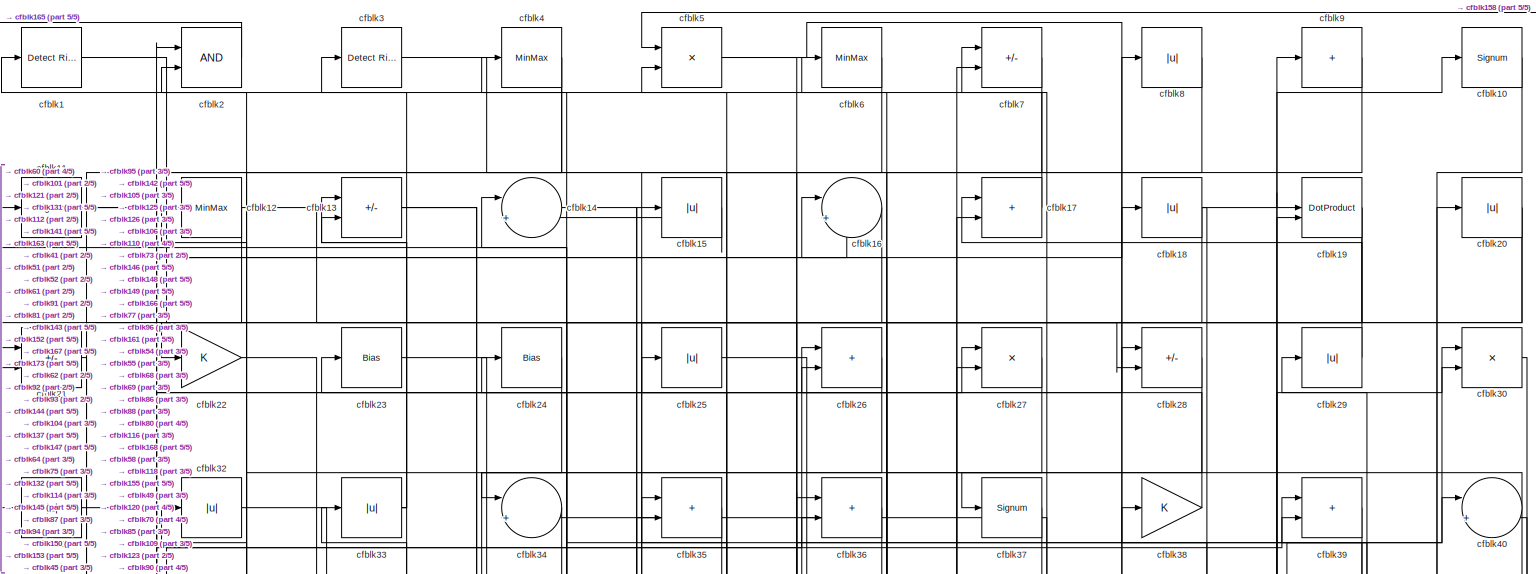
[diagram: root canvas - part 1/5, full width, top band]
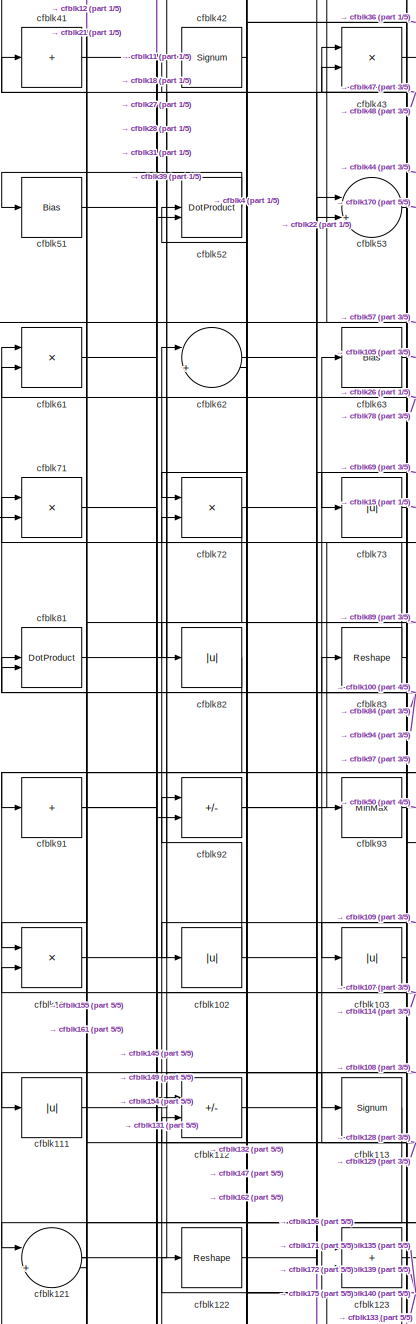
[diagram: root canvas - part 2/5, middle left region]
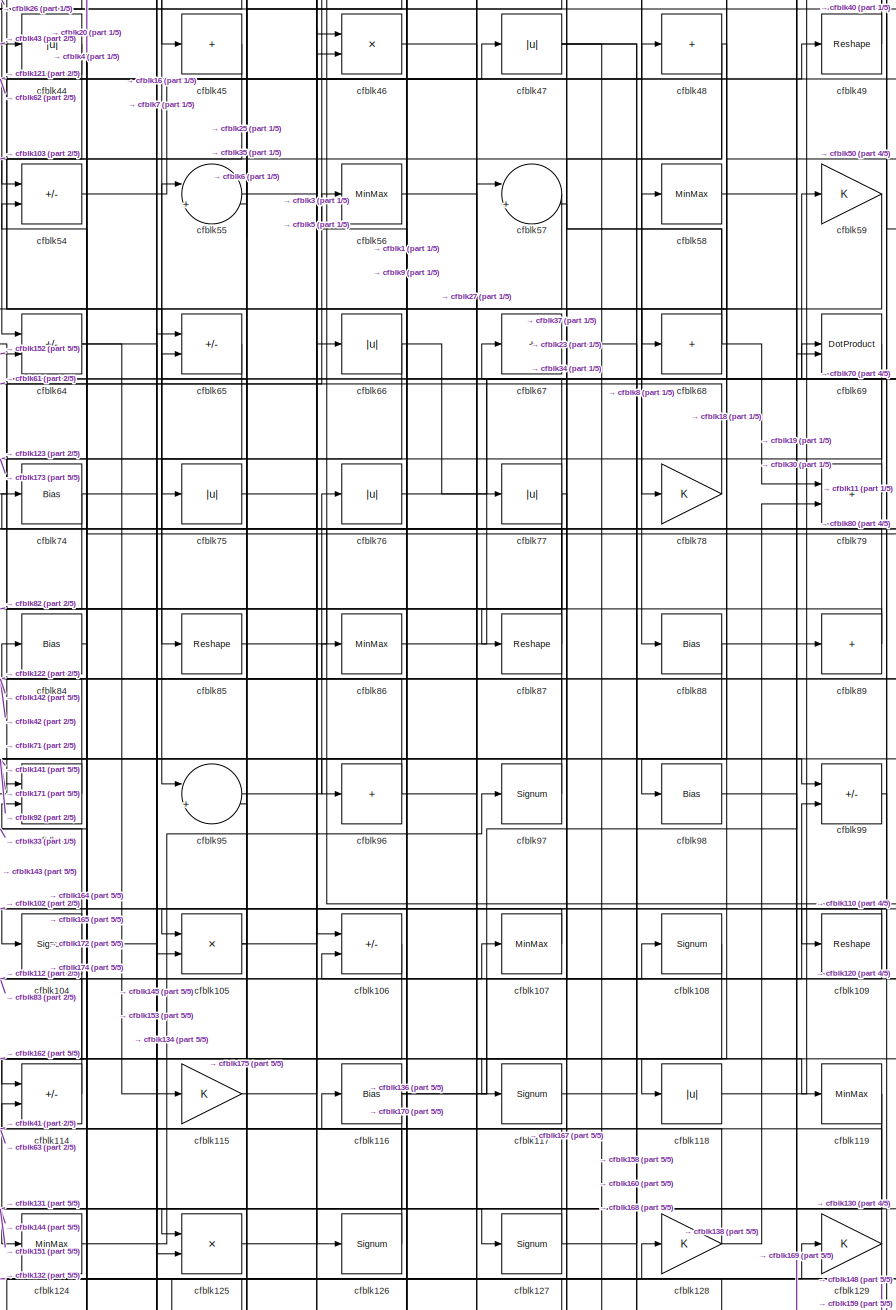
[diagram: root canvas - part 3/5, central region]
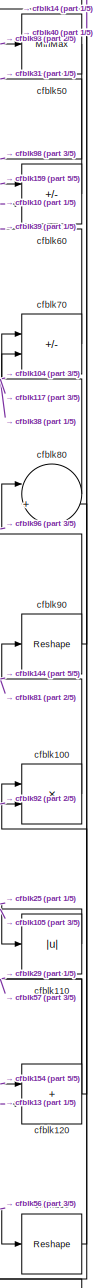
[diagram: root canvas - part 4/5, middle right region]
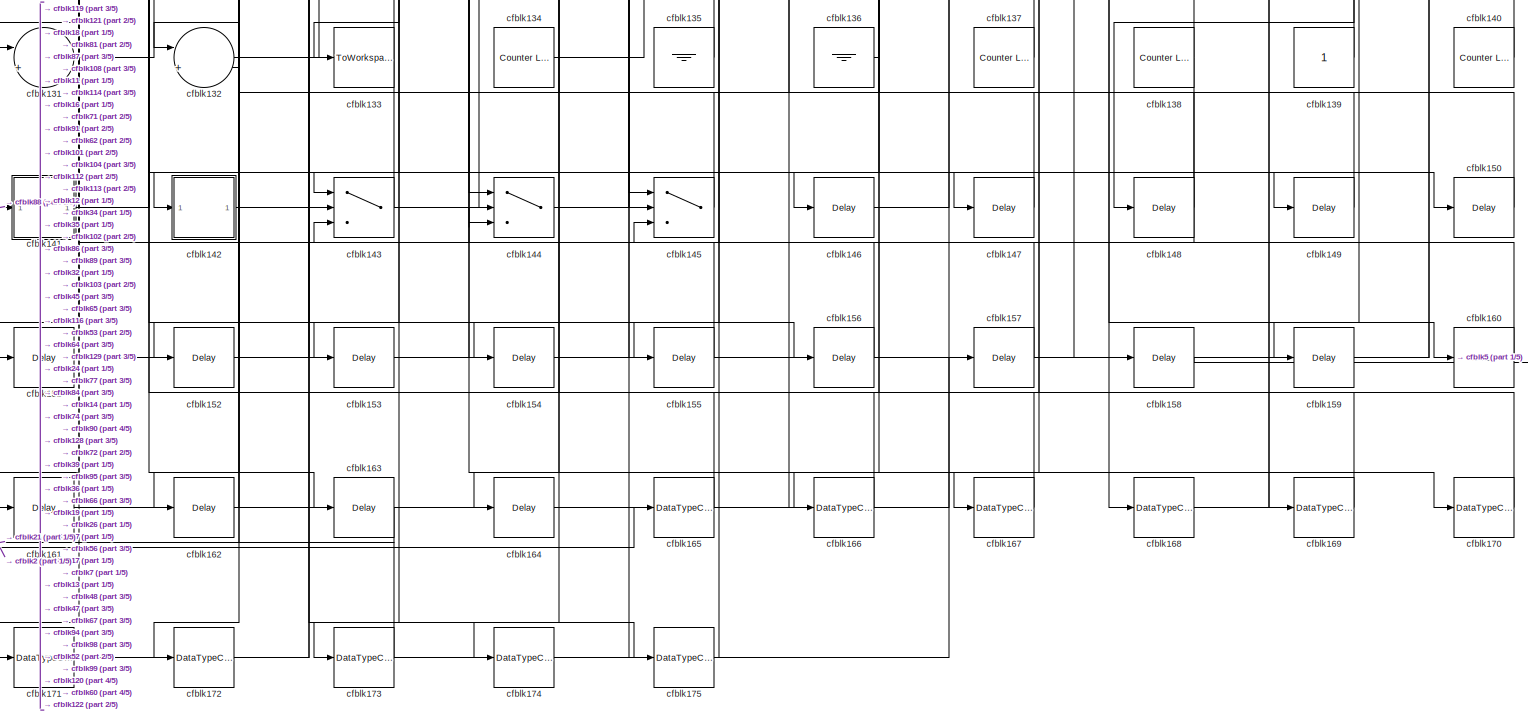
[diagram: root canvas - part 5/5, full width, bottom band]
MODEL slx_0c007ce50f65
KIND model
CONFIG AbsTol = auto
CONFIG EnableMultiTasking = off
CONFIG FixedStep = auto
CONFIG MaxStep = auto
CONFIG MinStep = auto
CONFIG RelTol = 1e-3
CONFIG SampleTimeConstraint = Unconstrained
CONFIG SolverName = VariableStepAuto
CONFIG StartTime = 0.0
CONFIG StopTime = 10.0
BLOCK [Reference] cfblk1  REF=hdlsllib/Logic and Bit
Operations/Detect Rise
Nonnegative
  SourceBlock = hdlsllib/Logic and Bit\nOperations/Detect Rise\nNonnegative
  SourceType = Detect Rise Nonnegative
BLOCK [Signum] cfblk10
BLOCK [Product] cfblk100
  Inputs = */
  RndMeth = Zero
  SaturateOnIntegerOverflow = on
BLOCK [Product] cfblk101
  Inputs = */
  RndMeth = Zero
  SaturateOnIntegerOverflow = on
BLOCK [Abs] cfblk102
  SaturateOnIntegerOverflow = off
BLOCK [Abs] cfblk103
  SaturateOnIntegerOverflow = off
BLOCK [Signum] cfblk104
BLOCK [Product] cfblk105
  Inputs = */
  RndMeth = Zero
  SaturateOnIntegerOverflow = on
BLOCK [Sum] cfblk106
  IconShape = rectangular
  Inputs = +-
BLOCK [MinMax] cfblk107
BLOCK [Signum] cfblk108
BLOCK [Reshape] cfblk109
BLOCK [Signum] cfblk11
BLOCK [Abs] cfblk110
  SaturateOnIntegerOverflow = off
BLOCK [Abs] cfblk111
  SaturateOnIntegerOverflow = off
BLOCK [Sum] cfblk112
  IconShape = rectangular
  Inputs = +-
BLOCK [Signum] cfblk113
BLOCK [Sum] cfblk114
  IconShape = rectangular
  Inputs = +-
BLOCK [Gain] cfblk115
BLOCK [Bias] cfblk116
  Bias = 0.0
  SaturateOnIntegerOverflow = off
BLOCK [Signum] cfblk117
BLOCK [Abs] cfblk118
  SaturateOnIntegerOverflow = off
BLOCK [MinMax] cfblk119
BLOCK [MinMax] cfblk12
BLOCK [Sum] cfblk120
  IconShape = rectangular
BLOCK [Sum] cfblk121
  Inputs = |++
BLOCK [Reshape] cfblk122
BLOCK [Sum] cfblk123
  IconShape = rectangular
BLOCK [MinMax] cfblk124
BLOCK [Product] cfblk125
  Inputs = */
  RndMeth = Zero
  SaturateOnIntegerOverflow = on
BLOCK [Signum] cfblk126
BLOCK [Signum] cfblk127
BLOCK [Gain] cfblk128
BLOCK [Gain] cfblk129
BLOCK [Sum] cfblk13
  IconShape = rectangular
  Inputs = +-
BLOCK [Reshape] cfblk130
BLOCK [Sum] cfblk131
  Inputs = |++
BLOCK [Sum] cfblk132
  Inputs = |++
BLOCK [ToWorkspace] cfblk133
  MaxDataPoints = inf
  SampleTime = -1
  SaveFormat = Timeseries
  VariableName = simout
BLOCK [Reference] cfblk134  REF=hdlsllib/Sources/Counter
Limited
  SourceBlock = hdlsllib/Sources/Counter\nLimited
  SourceType = Counter Limited
BLOCK [Ground] cfblk135
BLOCK [Ground] cfblk136
BLOCK [Reference] cfblk137  REF=hdlsllib/Sources/Counter
Limited
  SourceBlock = hdlsllib/Sources/Counter\nLimited
  SourceType = Counter Limited
BLOCK [Reference] cfblk138  REF=hdlsllib/Sources/Counter
Limited
  SourceBlock = hdlsllib/Sources/Counter\nLimited
  SourceType = Counter Limited
BLOCK [Constant] cfblk139
  SampleTime = -1
BLOCK [Sum] cfblk14
  Inputs = |++
BLOCK [Reference] cfblk140  REF=hdlsllib/Sources/Counter
Limited
  SourceBlock = hdlsllib/Sources/Counter\nLimited
  SourceType = Counter Limited
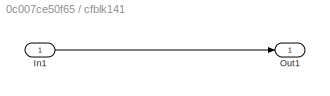
BLOCK [SubSystem] cfblk141
  LibrarySourceBlock = hdlsllib/Ports &\nSubsystems/Subsystem
BLOCK [Inport] cfblk141/In1
BLOCK [Outport] cfblk141/Out1
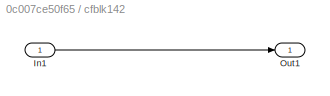
BLOCK [SubSystem] cfblk142
  LibrarySourceBlock = hdlsllib/Ports &\nSubsystems/Subsystem
BLOCK [Inport] cfblk142/In1
BLOCK [Outport] cfblk142/Out1
BLOCK [Switch] cfblk143
  InputSameDT = off
  SaturateOnIntegerOverflow = off
BLOCK [Switch] cfblk144
  InputSameDT = off
  SaturateOnIntegerOverflow = off
BLOCK [Switch] cfblk145
  InputSameDT = off
  SaturateOnIntegerOverflow = off
BLOCK [Delay] cfblk146
  InputPortMap = u0
  SampleTime = 1
BLOCK [Delay] cfblk147
  InputPortMap = u0
  SampleTime = 1
BLOCK [Delay] cfblk148
  InputPortMap = u0
  SampleTime = 1
BLOCK [Delay] cfblk149
  InputPortMap = u0
  SampleTime = 1
BLOCK [Abs] cfblk15
  SaturateOnIntegerOverflow = off
BLOCK [Delay] cfblk150
  InputPortMap = u0
  SampleTime = 1
BLOCK [Delay] cfblk151
  InputPortMap = u0
  SampleTime = 1
BLOCK [Delay] cfblk152
  InputPortMap = u0
  SampleTime = 1
BLOCK [Delay] cfblk153
  InputPortMap = u0
  SampleTime = 1
BLOCK [Delay] cfblk154
  InputPortMap = u0
  SampleTime = 1
BLOCK [Delay] cfblk155
  InputPortMap = u0
  SampleTime = 1
BLOCK [Delay] cfblk156
  InputPortMap = u0
  SampleTime = 1
BLOCK [Delay] cfblk157
  InputPortMap = u0
  SampleTime = 1
BLOCK [Delay] cfblk158
  InputPortMap = u0
  SampleTime = 1
BLOCK [Delay] cfblk159
  InputPortMap = u0
  SampleTime = 1
BLOCK [Sum] cfblk16
  Inputs = |++
BLOCK [Delay] cfblk160
  InputPortMap = u0
  SampleTime = 1
BLOCK [Delay] cfblk161
  InputPortMap = u0
  SampleTime = 1
BLOCK [Delay] cfblk162
  InputPortMap = u0
  SampleTime = 1
BLOCK [Delay] cfblk163
  InputPortMap = u0
  SampleTime = 1
BLOCK [Delay] cfblk164
  InputPortMap = u0
  SampleTime = 1
BLOCK [DataTypeConversion] cfblk165
  OutDataTypeStr = uint8
  RndMeth = Floor
  SaturateOnIntegerOverflow = off
BLOCK [DataTypeConversion] cfblk166
  OutDataTypeStr = uint8
  RndMeth = Floor
  SaturateOnIntegerOverflow = off
BLOCK [DataTypeConversion] cfblk167
  OutDataTypeStr = uint8
  RndMeth = Floor
  SaturateOnIntegerOverflow = off
BLOCK [DataTypeConversion] cfblk168
  OutDataTypeStr = uint8
  RndMeth = Floor
  SaturateOnIntegerOverflow = off
BLOCK [DataTypeConversion] cfblk169
  OutDataTypeStr = uint8
  RndMeth = Floor
  SaturateOnIntegerOverflow = off
BLOCK [Sum] cfblk17
  IconShape = rectangular
BLOCK [DataTypeConversion] cfblk170
  OutDataTypeStr = uint8
  RndMeth = Floor
  SaturateOnIntegerOverflow = off
BLOCK [DataTypeConversion] cfblk171
  OutDataTypeStr = uint8
  RndMeth = Floor
  SaturateOnIntegerOverflow = off
BLOCK [DataTypeConversion] cfblk172
  OutDataTypeStr = uint8
  RndMeth = Floor
  SaturateOnIntegerOverflow = off
BLOCK [DataTypeConversion] cfblk173
  RndMeth = Floor
  SaturateOnIntegerOverflow = off
BLOCK [DataTypeConversion] cfblk174
  OutDataTypeStr = uint8
  RndMeth = Floor
  SaturateOnIntegerOverflow = off
BLOCK [DataTypeConversion] cfblk175
  OutDataTypeStr = uint8
  RndMeth = Floor
  SaturateOnIntegerOverflow = off
BLOCK [Abs] cfblk18
  SaturateOnIntegerOverflow = off
BLOCK [DotProduct] cfblk19
  OutDataTypeStr = Inherit: Inherit via internal rule
BLOCK [Logic] cfblk2
  AllPortsSameDT = off
  OutDataTypeStr = boolean
BLOCK [Abs] cfblk20
  SaturateOnIntegerOverflow = off
BLOCK [Sum] cfblk21
  IconShape = rectangular
  Inputs = +-
BLOCK [Gain] cfblk22
BLOCK [Bias] cfblk23
  Bias = 0.0
  SaturateOnIntegerOverflow = off
BLOCK [Bias] cfblk24
  Bias = 0.0
  SaturateOnIntegerOverflow = off
BLOCK [Abs] cfblk25
  SaturateOnIntegerOverflow = off
BLOCK [Sum] cfblk26
  IconShape = rectangular
BLOCK [Product] cfblk27
  Inputs = */
  RndMeth = Zero
  SaturateOnIntegerOverflow = on
BLOCK [Sum] cfblk28
  IconShape = rectangular
  Inputs = +-
BLOCK [Abs] cfblk29
  SaturateOnIntegerOverflow = off
BLOCK [Reference] cfblk3  REF=hdlsllib/Logic and Bit
Operations/Detect Rise
Nonnegative
  SourceBlock = hdlsllib/Logic and Bit\nOperations/Detect Rise\nNonnegative
  SourceType = Detect Rise Nonnegative
BLOCK [Product] cfblk30
  Inputs = */
  RndMeth = Zero
  SaturateOnIntegerOverflow = on
BLOCK [Abs] cfblk31
  SaturateOnIntegerOverflow = off
BLOCK [Abs] cfblk32
  SaturateOnIntegerOverflow = off
BLOCK [Abs] cfblk33
  SaturateOnIntegerOverflow = off
BLOCK [Sum] cfblk34
  Inputs = |++
BLOCK [Sum] cfblk35
  IconShape = rectangular
BLOCK [Sum] cfblk36
  IconShape = rectangular
BLOCK [Signum] cfblk37
BLOCK [Gain] cfblk38
BLOCK [Sum] cfblk39
  IconShape = rectangular
BLOCK [MinMax] cfblk4
BLOCK [Sum] cfblk40
  Inputs = |++
BLOCK [Sum] cfblk41
  IconShape = rectangular
  Inputs = +
BLOCK [Signum] cfblk42
BLOCK [Product] cfblk43
  Inputs = */
  RndMeth = Zero
  SaturateOnIntegerOverflow = on
BLOCK [Abs] cfblk44
  SaturateOnIntegerOverflow = off
BLOCK [Sum] cfblk45
  IconShape = rectangular
  Inputs = +
BLOCK [Product] cfblk46
  Inputs = */
  RndMeth = Zero
  SaturateOnIntegerOverflow = on
BLOCK [Abs] cfblk47
  SaturateOnIntegerOverflow = off
BLOCK [Sum] cfblk48
  IconShape = rectangular
  Inputs = +
BLOCK [Reshape] cfblk49
BLOCK [Product] cfblk5
  Inputs = */
  RndMeth = Zero
  SaturateOnIntegerOverflow = on
BLOCK [MinMax] cfblk50
BLOCK [Bias] cfblk51
  Bias = 0.0
  SaturateOnIntegerOverflow = off
BLOCK [DotProduct] cfblk52
  OutDataTypeStr = Inherit: Inherit via internal rule
BLOCK [Sum] cfblk53
  Inputs = |++
BLOCK [Sum] cfblk54
  IconShape = rectangular
  Inputs = +-
BLOCK [Sum] cfblk55
  Inputs = |++
BLOCK [MinMax] cfblk56
BLOCK [Sum] cfblk57
  Inputs = |++
BLOCK [MinMax] cfblk58
BLOCK [Gain] cfblk59
BLOCK [MinMax] cfblk6
BLOCK [Sum] cfblk60
  IconShape = rectangular
  Inputs = +-
BLOCK [Product] cfblk61
  Inputs = */
  RndMeth = Zero
  SaturateOnIntegerOverflow = on
BLOCK [Sum] cfblk62
  Inputs = |++
BLOCK [Bias] cfblk63
  Bias = 0.0
  SaturateOnIntegerOverflow = off
BLOCK [Sum] cfblk64
  IconShape = rectangular
  Inputs = +-
BLOCK [Sum] cfblk65
  IconShape = rectangular
  Inputs = +-
BLOCK [Abs] cfblk66
  SaturateOnIntegerOverflow = off
BLOCK [Sum] cfblk67
  IconShape = rectangular
  Inputs = +
BLOCK [Sum] cfblk68
  IconShape = rectangular
  Inputs = +
BLOCK [DotProduct] cfblk69
  OutDataTypeStr = Inherit: Inherit via internal rule
BLOCK [Sum] cfblk7
  IconShape = rectangular
  Inputs = +-
BLOCK [Sum] cfblk70
  IconShape = rectangular
  Inputs = +-
BLOCK [Product] cfblk71
  Inputs = */
  RndMeth = Zero
  SaturateOnIntegerOverflow = on
BLOCK [Product] cfblk72
  Inputs = */
  RndMeth = Zero
  SaturateOnIntegerOverflow = on
BLOCK [Abs] cfblk73
  SaturateOnIntegerOverflow = off
BLOCK [Bias] cfblk74
  Bias = 0.0
  SaturateOnIntegerOverflow = off
BLOCK [Abs] cfblk75
  SaturateOnIntegerOverflow = off
BLOCK [Abs] cfblk76
  SaturateOnIntegerOverflow = off
BLOCK [Abs] cfblk77
  SaturateOnIntegerOverflow = off
BLOCK [Gain] cfblk78
BLOCK [Sum] cfblk79
  IconShape = rectangular
BLOCK [Abs] cfblk8
  SaturateOnIntegerOverflow = off
BLOCK [Sum] cfblk80
  Inputs = |++
BLOCK [DotProduct] cfblk81
  OutDataTypeStr = Inherit: Inherit via internal rule
BLOCK [Abs] cfblk82
  SaturateOnIntegerOverflow = off
BLOCK [Reshape] cfblk83
BLOCK [Bias] cfblk84
  Bias = 0.0
  SaturateOnIntegerOverflow = off
BLOCK [Reshape] cfblk85
BLOCK [MinMax] cfblk86
BLOCK [Reshape] cfblk87
BLOCK [Bias] cfblk88
  Bias = 0.0
  SaturateOnIntegerOverflow = off
BLOCK [Sum] cfblk89
  IconShape = rectangular
  Inputs = +
BLOCK [Sum] cfblk9
  IconShape = rectangular
  Inputs = +
BLOCK [Reshape] cfblk90
BLOCK [Sum] cfblk91
  IconShape = rectangular
  Inputs = +
BLOCK [Sum] cfblk92
  IconShape = rectangular
  Inputs = +-
BLOCK [MinMax] cfblk93
BLOCK [Sum] cfblk94
  IconShape = rectangular
BLOCK [Sum] cfblk95
  Inputs = |++
BLOCK [Sum] cfblk96
  IconShape = rectangular
  Inputs = +
BLOCK [Signum] cfblk97
BLOCK [Bias] cfblk98
  Bias = 0.0
  SaturateOnIntegerOverflow = off
BLOCK [Sum] cfblk99
  IconShape = rectangular
  Inputs = +-
LINE cfblk100:1 -> cfblk81:1
LINE cfblk101:1 -> cfblk26:1
NET cfblk102:1 -> cfblk156:1, cfblk92:1
LINE cfblk103:1 -> cfblk133:1
NET cfblk104:1 -> cfblk162:1, cfblk33:1, cfblk70:2
NET cfblk105:1 -> cfblk35:1, cfblk40:1
LINE cfblk106:1 -> cfblk124:1
LINE cfblk107:1 -> cfblk104:1
LINE cfblk108:1 -> cfblk121:2
NET cfblk109:1 -> cfblk102:1, cfblk106:2
LINE cfblk10:1 -> cfblk60:2
LINE cfblk110:1 -> cfblk105:1
LINE cfblk111:1 -> cfblk113:1
LINE cfblk112:1 -> cfblk107:1
LINE cfblk113:1 -> cfblk132:2
LINE cfblk114:1 -> cfblk83:1
LINE cfblk115:1 -> cfblk49:1
NET cfblk116:1 -> cfblk144:3, cfblk19:2, cfblk99:2
LINE cfblk117:1 -> cfblk70:1
LINE cfblk118:1 -> cfblk30:1
NET cfblk119:1 -> cfblk131:2, cfblk151:1
NET cfblk11:1 -> cfblk163:1, cfblk52:2
NET cfblk120:1 -> cfblk29:1, cfblk57:2, cfblk80:2
NET cfblk121:1 -> cfblk161:1, cfblk47:1
LINE cfblk122:1 -> cfblk84:1
LINE cfblk123:1 -> cfblk44:1
LINE cfblk124:1 -> cfblk97:1
LINE cfblk125:1 -> cfblk127:1
LINE cfblk126:1 -> cfblk5:2
NET cfblk127:1 -> cfblk54:2, cfblk69:1
NET cfblk128:1 -> cfblk63:1, cfblk79:2
NET cfblk129:1 -> cfblk148:1, cfblk41:1
NET cfblk12:1 -> cfblk121:1, cfblk28:2
LINE cfblk130:1 -> cfblk100:1
LINE cfblk131:1 -> cfblk62:1
LINE cfblk132:1 -> cfblk89:1
LINE cfblk134:1 -> cfblk128:1
LINE cfblk135:1 -> cfblk72:2
LINE cfblk136:1 -> cfblk56:1
LINE cfblk137:1 -> cfblk13:1
NET cfblk138:1 -> cfblk145:3, cfblk94:2
LINE cfblk139:1 -> cfblk52:1
NET cfblk13:1 -> cfblk120:2, cfblk147:1
LINE cfblk140:1 -> cfblk122:1
LINE cfblk141/In1:1 -> cfblk141/Out1:1
NET cfblk141:1 -> cfblk108:1, cfblk114:2, cfblk16:2
LINE cfblk142/In1:1 -> cfblk142/Out1:1
LINE cfblk142:1 -> cfblk86:1
NET cfblk143:1 -> cfblk129:1, cfblk32:1
LINE cfblk144:1 -> cfblk90:1
LINE cfblk145:1 -> cfblk24:1
LINE cfblk146:1 -> cfblk17:2
LINE cfblk147:1 -> cfblk101:2
LINE cfblk148:1 -> cfblk16:1
LINE cfblk149:1 -> cfblk26:2
LINE cfblk14:1 -> cfblk150:1
LINE cfblk150:1 -> cfblk36:1
LINE cfblk151:1 -> cfblk143:2
LINE cfblk152:1 -> cfblk64:2
LINE cfblk153:1 -> cfblk35:2
LINE cfblk154:1 -> cfblk120:1
LINE cfblk155:1 -> cfblk81:2
LINE cfblk156:1 -> cfblk144:2
LINE cfblk157:1 -> cfblk143:3
LINE cfblk158:1 -> cfblk5:1
LINE cfblk159:1 -> cfblk60:1
LINE cfblk15:1 -> cfblk14:2
LINE cfblk160:1 -> cfblk95:2
LINE cfblk161:1 -> cfblk7:2
LINE cfblk162:1 -> cfblk112:2
LINE cfblk163:1 -> cfblk21:2
LINE cfblk164:1 -> cfblk66:1
LINE cfblk165:1 -> cfblk74:1
LINE cfblk166:1 -> cfblk2:1
LINE cfblk167:1 -> cfblk2:2
LINE cfblk168:1 -> cfblk19:1
LINE cfblk169:1 -> cfblk67:1
LINE cfblk16:1 -> cfblk95:1
LINE cfblk170:1 -> cfblk116:1
LINE cfblk171:1 -> cfblk53:1
LINE cfblk172:1 -> cfblk53:2
NET cfblk173:1 -> cfblk12:1, cfblk157:1
LINE cfblk174:1 -> cfblk65:1
LINE cfblk175:1 -> cfblk65:2
LINE cfblk17:1 -> cfblk6:1
NET cfblk18:1 -> cfblk10:1, cfblk131:1, cfblk68:1
NET cfblk19:1 -> cfblk114:1, cfblk166:1
LINE cfblk1:1 -> cfblk126:1
NET cfblk20:1 -> cfblk22:1, cfblk94:1
LINE cfblk21:1 -> cfblk101:1
LINE cfblk22:1 -> cfblk93:1
LINE cfblk23:1 -> cfblk75:1
LINE cfblk24:1 -> cfblk152:1
LINE cfblk25:1 -> cfblk110:1
LINE cfblk26:1 -> cfblk64:1
LINE cfblk27:1 -> cfblk146:1
LINE cfblk28:1 -> cfblk34:1
LINE cfblk29:1 -> cfblk7:1
LINE cfblk2:1 -> cfblk165:1
LINE cfblk30:1 -> cfblk123:1
LINE cfblk31:1 -> cfblk112:1
LINE cfblk32:1 -> cfblk144:1
NET cfblk33:1 -> cfblk13:2, cfblk3:1
LINE cfblk34:1 -> cfblk132:1
LINE cfblk35:1 -> cfblk142:1
LINE cfblk36:1 -> cfblk73:1
LINE cfblk37:1 -> cfblk55:2
LINE cfblk38:1 -> cfblk17:1
LINE cfblk39:1 -> cfblk155:1
LINE cfblk3:1 -> cfblk106:1
NET cfblk40:1 -> cfblk109:1, cfblk37:1
LINE cfblk41:1 -> cfblk28:1
LINE cfblk42:1 -> cfblk72:1
LINE cfblk43:1 -> cfblk78:1
LINE cfblk44:1 -> cfblk103:1
LINE cfblk45:1 -> cfblk143:1
LINE cfblk46:1 -> cfblk119:1
NET cfblk47:1 -> cfblk158:1, cfblk160:1, cfblk99:1
NET cfblk48:1 -> cfblk118:1, cfblk167:1, cfblk54:1
LINE cfblk49:1 -> cfblk11:1
NET cfblk4:1 -> cfblk62:2, cfblk92:2
LINE cfblk50:1 -> cfblk98:1
LINE cfblk51:1 -> cfblk18:1
LINE cfblk52:1 -> cfblk51:1
LINE cfblk53:1 -> cfblk170:1
LINE cfblk54:1 -> cfblk27:2
LINE cfblk55:1 -> cfblk46:2
LINE cfblk56:1 -> cfblk130:1
LINE cfblk57:1 -> cfblk71:2
LINE cfblk58:1 -> cfblk9:1
LINE cfblk59:1 -> cfblk87:1
NET cfblk5:1 -> cfblk69:2, cfblk88:1
LINE cfblk60:1 -> cfblk31:1
LINE cfblk61:1 -> cfblk27:1
LINE cfblk62:1 -> cfblk48:1
LINE cfblk63:1 -> cfblk105:2
NET cfblk64:1 -> cfblk115:1, cfblk125:2
LINE cfblk65:1 -> cfblk173:1
NET cfblk66:1 -> cfblk77:1, cfblk85:1
LINE cfblk67:1 -> cfblk168:1
NET cfblk68:1 -> cfblk23:1, cfblk34:2, cfblk79:1
LINE cfblk69:1 -> cfblk123:2
LINE cfblk6:1 -> cfblk125:1
LINE cfblk70:1 -> cfblk39:2
NET cfblk71:1 -> cfblk145:2, cfblk154:1
NET cfblk72:1 -> cfblk111:1, cfblk175:1
LINE cfblk73:1 -> cfblk15:1
NET cfblk74:1 -> cfblk145:1, cfblk153:1
LINE cfblk75:1 -> cfblk46:1
LINE cfblk76:1 -> cfblk58:1
NET cfblk77:1 -> cfblk117:1, cfblk164:1, cfblk172:1, cfblk1:1
LINE cfblk78:1 -> cfblk61:2
LINE cfblk79:1 -> cfblk59:1
LINE cfblk7:1 -> cfblk45:1
LINE cfblk80:1 -> cfblk38:1
LINE cfblk81:1 -> cfblk39:1
LINE cfblk82:1 -> cfblk91:1
NET cfblk83:1 -> cfblk43:2, cfblk61:1
LINE cfblk84:1 -> cfblk174:1
LINE cfblk85:1 -> cfblk20:1
LINE cfblk86:1 -> cfblk8:1
NET cfblk87:1 -> cfblk171:1, cfblk4:1, cfblk55:1
NET cfblk88:1 -> cfblk141:1, cfblk30:2
NET cfblk89:1 -> cfblk43:1, cfblk82:1
LINE cfblk8:1 -> cfblk21:1
NET cfblk90:1 -> cfblk14:1, cfblk40:2
NET cfblk91:1 -> cfblk149:1, cfblk36:2
NET cfblk92:1 -> cfblk100:2, cfblk57:1
LINE cfblk93:1 -> cfblk50:1
LINE cfblk94:1 -> cfblk71:1
LINE cfblk95:1 -> cfblk76:1
NET cfblk96:1 -> cfblk25:1, cfblk80:1
LINE cfblk97:1 -> cfblk42:1
LINE cfblk98:1 -> cfblk169:1
LINE cfblk99:1 -> cfblk159:1
LINE cfblk9:1 -> cfblk96:1
note: NET lines group one-source signal fan-out (src -> all destinations, sorted); 1:1 wires keep LINE
